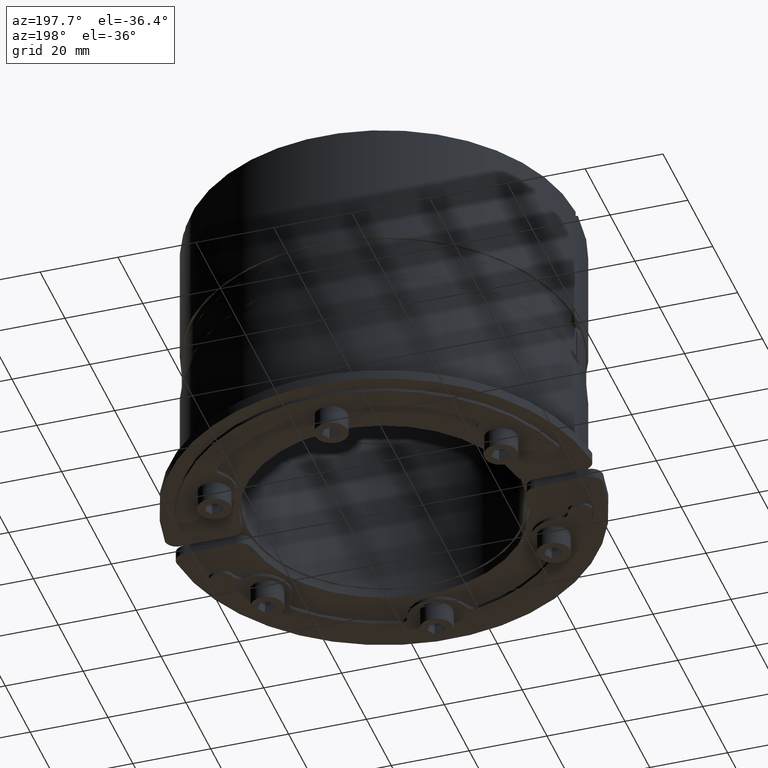
[diagram: clean part render]
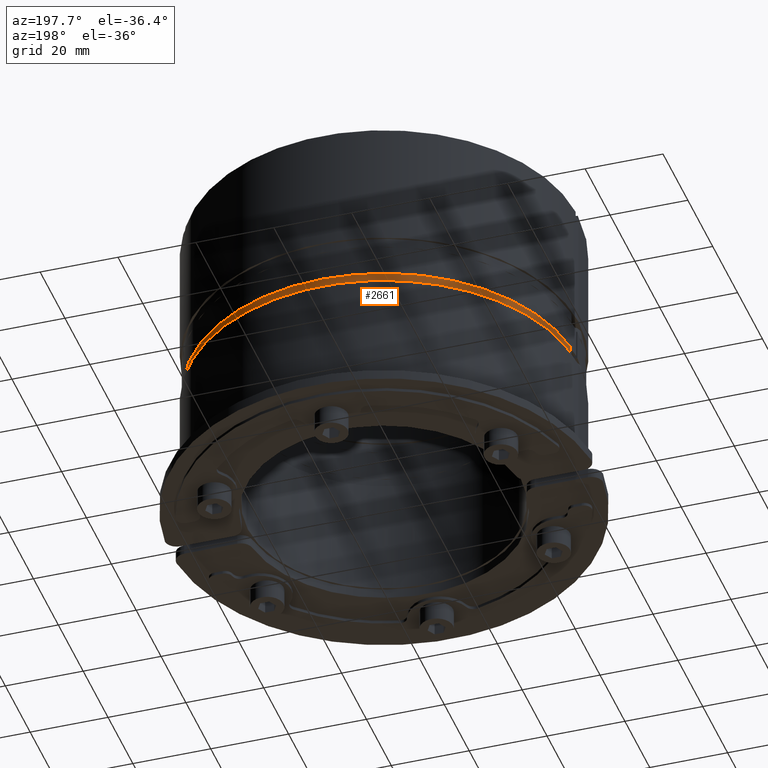
[diagram: same view with one face highlighted and labeled with its STEP entity id]
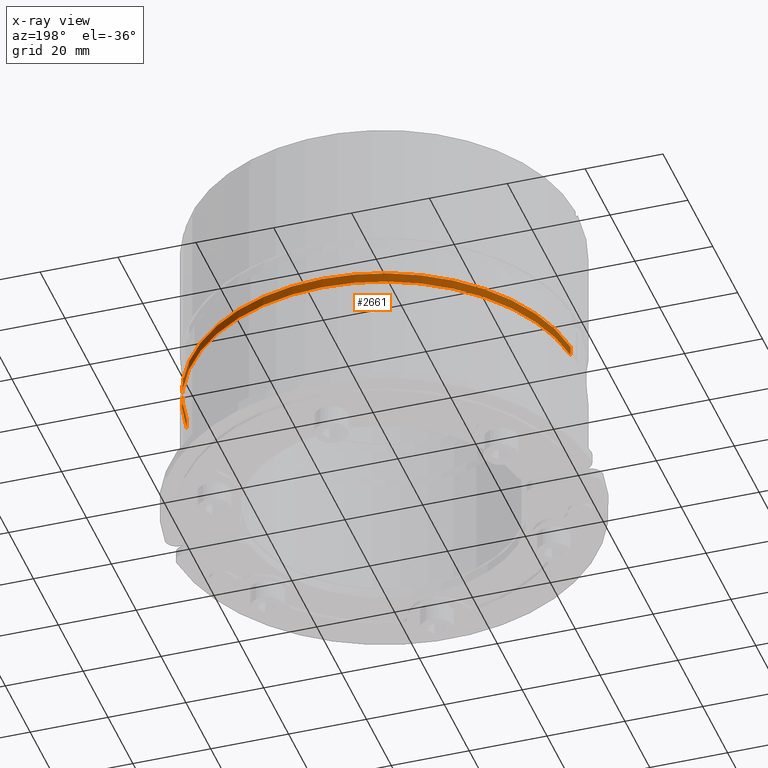
[diagram: x-ray of the same camera — body ghosted, the highlighted face saturated]
A machine part, auxiliary view. The second image highlights one B-rep face of the part: STEP entity #2661.
The next image is the same camera in x-ray: the body ghosted, the highlighted face saturated — about 1% of this face is hidden behind the body in this view.
In plain terms, the highlighted cylindrical surface (partial cylindrical patch) has radius 49.5 mm, axis along (0, -0, 1).
Its self-contained STEP definition (entity closure, byte-faithful):
#2181=CARTESIAN_POINT('',(49.806001689521828,-21.491935483871323,-1.250000000000000));
#2182=VERTEX_POINT('',#2181);
#2190=CARTESIAN_POINT('',(49.806001689521828,-21.491935483871323,1.250000000000000));
#2191=VERTEX_POINT('',#2190);
#2192=CARTESIAN_POINT('',(49.806001689521828,-21.491935483871323,-1.250000000000000));
#2193=DIRECTION('',(0.0,0.0,1.0));
#2194=VECTOR('',#2193,2.500000000000000);
#2195=LINE('',#2192,#2194);
#2196=EDGE_CURVE('',#2182,#2191,#2195,.T.);
#2340=CARTESIAN_POINT('',(-48.827033072194446,-21.491935483871309,1.250000000000000));
#2341=VERTEX_POINT('',#2340);
#2349=CARTESIAN_POINT('',(-48.827033072194446,-21.491935483871309,-1.250000000000000));
#2350=VERTEX_POINT('',#2349);
#2351=CARTESIAN_POINT('',(-48.827033072194446,-21.491935483871309,1.250000000000000));
#2352=DIRECTION('',(0.0,0.0,-1.0));
#2353=VECTOR('',#2352,2.500000000000000);
#2354=LINE('',#2351,#2353);
#2355=EDGE_CURVE('',#2341,#2350,#2354,.T.);
#2404=CARTESIAN_POINT('',(0.489484308663691,-25.750000000000327,-1.250000000000000));
#2405=DIRECTION('',(0.0,0.0,-1.0));
#2406=DIRECTION('',(-1.0,0.0,0.0));
#2407=AXIS2_PLACEMENT_3D('',#2404,#2405,#2406);
#2408=CIRCLE('',#2407,49.500000000000000);
#2409=EDGE_CURVE('',#2350,#2182,#2408,.T.);
#2644=CARTESIAN_POINT('',(0.489484308663691,-25.750000000000327,-1.250000000000000));
#2645=DIRECTION('',(0.0,0.0,1.0));
#2646=DIRECTION('',(-1.0,0.0,0.0));
#2647=AXIS2_PLACEMENT_3D('',#2644,#2645,#2646);
#2648=CYLINDRICAL_SURFACE('',#2647,49.500000000000000);
#2649=ORIENTED_EDGE('',*,*,#2355,.F.);
#2650=CARTESIAN_POINT('',(0.489484308663691,-25.750000000000327,1.250000000000000));
#2651=DIRECTION('',(0.0,0.0,-1.0));
#2652=DIRECTION('',(-1.0,0.0,0.0));
#2653=AXIS2_PLACEMENT_3D('',#2650,#2651,#2652);
#2654=CIRCLE('',#2653,49.500000000000000);
#2655=EDGE_CURVE('',#2341,#2191,#2654,.T.);
#2656=ORIENTED_EDGE('',*,*,#2655,.T.);
#2657=ORIENTED_EDGE('',*,*,#2196,.F.);
#2658=ORIENTED_EDGE('',*,*,#2409,.F.);
#2659=EDGE_LOOP('',(#2649,#2656,#2657,#2658));
#2660=FACE_OUTER_BOUND('',#2659,.T.);
#2661=ADVANCED_FACE('',(#2660),#2648,.T.);